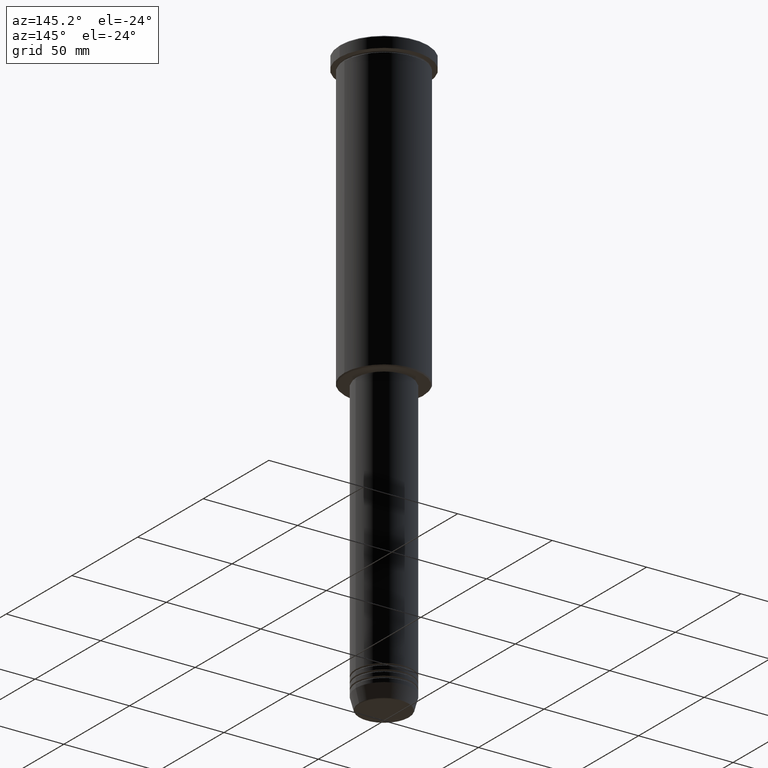
[diagram: clean part render]
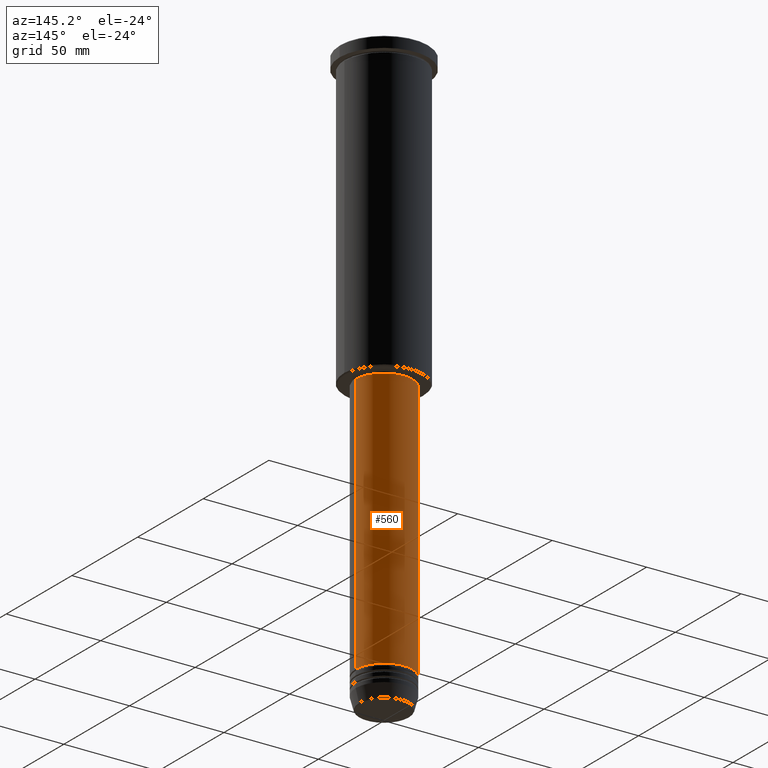
[diagram: same view with one face highlighted and labeled with its STEP entity id]
A machine part, auxiliary view. The second image highlights one B-rep face of the part: STEP entity #560.
In plain terms, the highlighted cylindrical surface (edge-blend (fillet) strip) has radius 15 mm, axis along (-0, -0, 1).
Its self-contained STEP definition (entity closure, byte-faithful):
#106 = LINE ( 'NONE', #825, #771 ) ;
#162 = CARTESIAN_POINT ( 'NONE',  ( 0.000000000000000000, 0.000000000000000000, -156.9999999999999147 ) ) ;
#169 = CYLINDRICAL_SURFACE ( 'NONE', #574, 15.00000000000000000 ) ;
#198 = AXIS2_PLACEMENT_3D ( 'NONE', #610, #1038, #877 ) ;
#243 = CARTESIAN_POINT ( 'NONE',  ( -15.00000000000000000, 1.836970198721029589E-15, -156.9999999999999147 ) ) ;
#248 = VERTEX_POINT ( 'NONE', #929 ) ;
#374 = CARTESIAN_POINT ( 'NONE',  ( 15.00000000000000000, 0.000000000000000000, -295.0000000000000000 ) ) ;
#388 = ORIENTED_EDGE ( 'NONE', *, *, #978, .T. ) ;
#442 = DIRECTION ( 'NONE',  ( 1.000000000000000000, 0.000000000000000000, 0.000000000000000000 ) ) ;
#465 = ORIENTED_EDGE ( 'NONE', *, *, #774, .T. ) ;
#473 = DIRECTION ( 'NONE',  ( -0.000000000000000000, -0.000000000000000000, 1.000000000000000000 ) ) ;
#503 = EDGE_CURVE ( 'NONE', #782, #769, #830, .T. ) ;
#533 = CIRCLE ( 'NONE', #198, 15.00000000000000000 ) ;
#560 = ADVANCED_FACE ( 'NONE', ( #983 ), #169, .T. ) ;
#574 = AXIS2_PLACEMENT_3D ( 'NONE', #896, #700, #1058 ) ;
#589 = EDGE_CURVE ( 'NONE', #961, #782, #1173, .T. ) ;
#610 = CARTESIAN_POINT ( 'NONE',  ( 0.000000000000000000, 0.000000000000000000, -295.0000000000000000 ) ) ;
#627 = ORIENTED_EDGE ( 'NONE', *, *, #589, .F. ) ;
#700 = DIRECTION ( 'NONE',  ( -0.000000000000000000, -0.000000000000000000, 1.000000000000000000 ) ) ;
#711 = DIRECTION ( 'NONE',  ( -0.000000000000000000, -0.000000000000000000, 1.000000000000000000 ) ) ;
#748 = ORIENTED_EDGE ( 'NONE', *, *, #503, .F. ) ;
#769 = VERTEX_POINT ( 'NONE', #243 ) ;
#771 = VECTOR ( 'NONE', #473, 1000.000000000000000 ) ;
#772 = EDGE_LOOP ( 'NONE', ( #465, #388, #748, #627 ) ) ;
#774 = EDGE_CURVE ( 'NONE', #961, #248, #533, .T. ) ;
#782 = VERTEX_POINT ( 'NONE', #799 ) ;
#799 = CARTESIAN_POINT ( 'NONE',  ( 15.00000000000000000, 0.000000000000000000, -156.9999999999999147 ) ) ;
#825 = CARTESIAN_POINT ( 'NONE',  ( -15.00000000000000000, 1.836970198721029589E-15, 0.000000000000000000 ) ) ;
#830 = CIRCLE ( 'NONE', #1145, 15.00000000000000000 ) ;
#877 = DIRECTION ( 'NONE',  ( 1.000000000000000000, 0.000000000000000000, 0.000000000000000000 ) ) ;
#896 = CARTESIAN_POINT ( 'NONE',  ( 0.000000000000000000, 0.000000000000000000, 0.000000000000000000 ) ) ;
#929 = CARTESIAN_POINT ( 'NONE',  ( -15.00000000000000000, 1.836970198721029589E-15, -295.0000000000000000 ) ) ;
#961 = VERTEX_POINT ( 'NONE', #374 ) ;
#978 = EDGE_CURVE ( 'NONE', #248, #769, #106, .T. ) ;
#983 = FACE_OUTER_BOUND ( 'NONE', #772, .T. ) ;
#1038 = DIRECTION ( 'NONE',  ( -0.000000000000000000, -0.000000000000000000, 1.000000000000000000 ) ) ;
#1058 = DIRECTION ( 'NONE',  ( 1.000000000000000000, 0.000000000000000000, 0.000000000000000000 ) ) ;
#1066 = DIRECTION ( 'NONE',  ( -0.000000000000000000, -0.000000000000000000, 1.000000000000000000 ) ) ;
#1085 = CARTESIAN_POINT ( 'NONE',  ( 15.00000000000000000, 0.000000000000000000, 0.000000000000000000 ) ) ;
#1145 = AXIS2_PLACEMENT_3D ( 'NONE', #162, #711, #442 ) ;
#1146 = VECTOR ( 'NONE', #1066, 1000.000000000000000 ) ;
#1173 = LINE ( 'NONE', #1085, #1146 ) ;